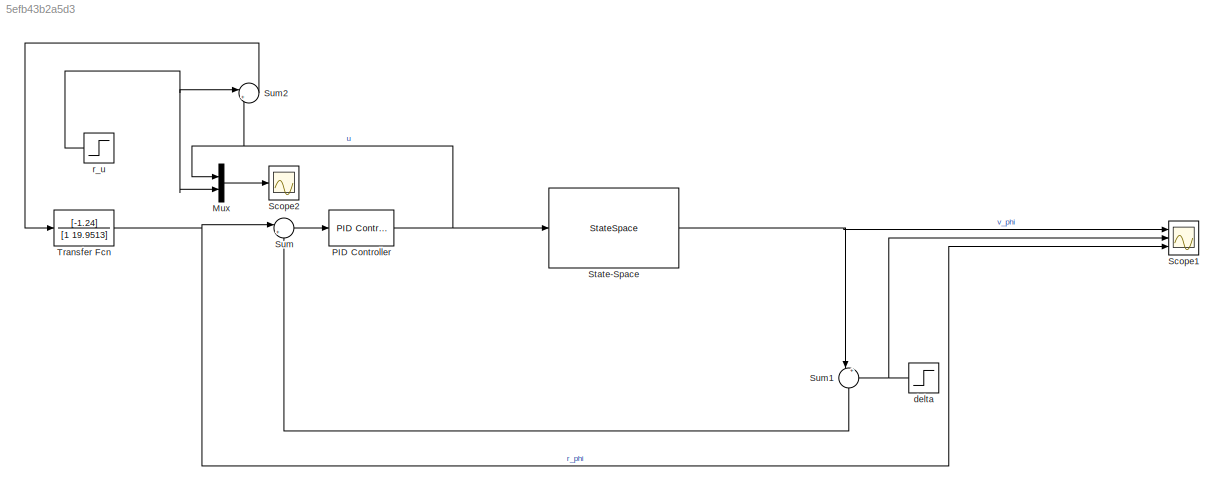
MODEL slx_5efb43b2a5d3
KIND model
CONFIG AbsTol = auto
CONFIG EnableMultiTasking = off
CONFIG FixedStep = auto
CONFIG MaxStep = auto
CONFIG MinStep = auto
CONFIG RelTol = 1e-3
CONFIG SampleTimeConstraint = Unconstrained
CONFIG SolverName = VariableStepAuto
CONFIG StartTime = 0.0
CONFIG StopTime = 3
BLOCK [Mux] Mux
  DisplayOption = bar
  Inputs = 2
  Ports = [2, 1]
BLOCK [Reference] PID Controller  REF=pid_lib/PID Controller
  Ports = [1, 1]
  SourceBlock = pid_lib/PID Controller
  SourceProductBaseCode = SL
  SourceType = PID 1dof
BLOCK [Scope] Scope1
  Floating = off
  NumInputPorts = 3
  Ports = [3]
  ScopeSpecificationString = Simulink.scopes.TimeScopeBlockCfg('CurrentConfiguration', extmgr.ConfigurationSet(extmgr.Configuration('Core','General UI',true),extmgr.Configuration('Core','Source UI',true),extmgr.Configuration('Sources','WiredSimulink',true,'DataLoggingVariableName','ScopeData1'),extmgr.Configuration('Visuals','Time Domain',true,'SerializedDisplays',{struct('MinYLimReal','-0.81846','MaxYLimReal','0.84083','YLab...<+1452ch>
BLOCK [Scope] Scope2
  Floating = off
  NumInputPorts = 1
  Ports = [1]
  ScopeSpecificationString = Simulink.scopes.TimeScopeBlockCfg('CurrentConfiguration', extmgr.ConfigurationSet(extmgr.Configuration('Core','General UI',true),extmgr.Configuration('Core','Source UI',true),extmgr.Configuration('Sources','WiredSimulink',true,'DataLoggingVariableName','ScopeData1'),extmgr.Configuration('Visuals','Time Domain',true,'SerializedDisplays',{struct('MinYLimReal','-22.48285','MaxYLimReal','13.60921','YL...<+1474ch>
BLOCK [StateSpace] State-Space
  A = [0 1 0; 23.5031 0 0.0045; -23.5031 0 -19.9513]
  B = [0; 0.1393; -621.6819]
  C = [107.47 0 0]
  D = 0
  InitialCondition = [0.0019 0 0]
  Ports = [1, 1]
BLOCK [Sum] Sum
  Inputs = |+-
  Ports = [2, 1]
BLOCK [Sum] Sum1
  Inputs = |++
  NameLocation = left
  Ports = [2, 1]
BLOCK [Sum] Sum2
  Inputs = |+-
  Ports = [2, 1]
BLOCK [TransferFcn] Transfer Fcn
  Denominator = [1 19.9513]
  Numerator = [-1.24]
BLOCK [Step] delta
  After = 0.2
  NameLocation = top
  SampleTime = 0
  Time = 1.5
BLOCK [Step] r_u
  After = -3.141732283
  NameLocation = top
  SampleTime = 0
  Time = 2.5
LINE Mux:1 -> Scope2:1
NET PID Controller:1 -> Mux:1, State-Space:1, Sum2:2
NET State-Space:1 -> Scope1:1, Sum1:1
LINE Sum1:1 -> Sum:2
LINE Sum2:1 -> Transfer Fcn:1
LINE Sum:1 -> PID Controller:1
NET Transfer Fcn:1 -> Scope1:3, Sum:1
NET delta:1 -> Scope1:2, Sum1:2
NET r_u:1 -> Mux:2, Sum2:1
note: NET lines group one-source signal fan-out (src -> all destinations, sorted); 1:1 wires keep LINE
